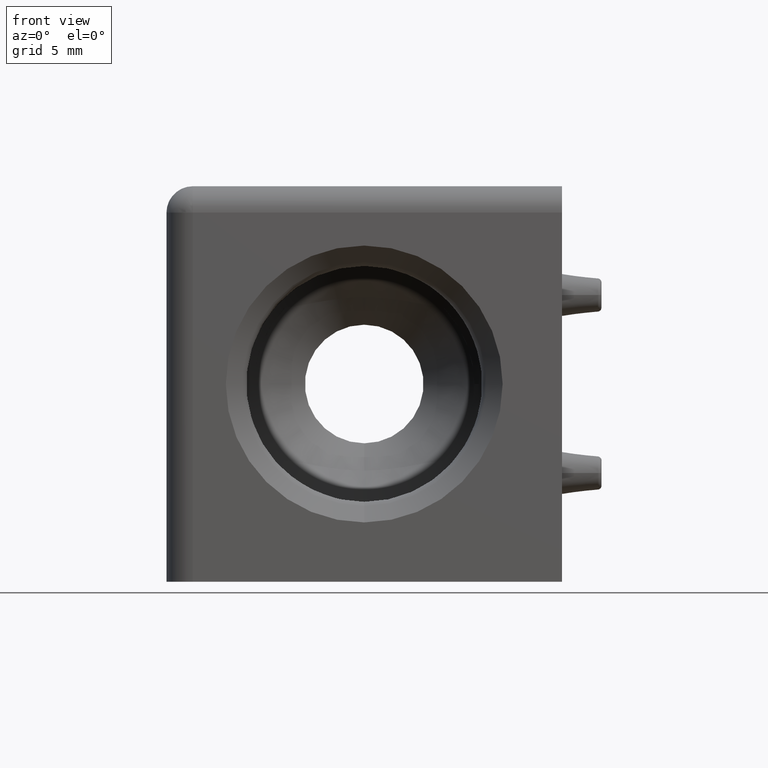
[diagram: clean part render]
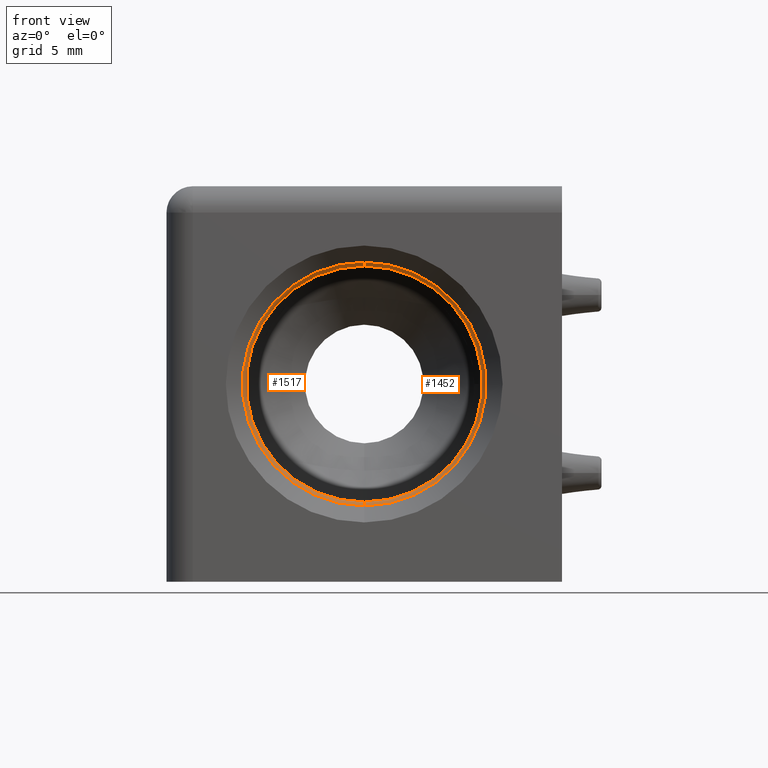
[diagram: same view with one multi-face feature highlighted, each face labeled with its STEP entity id]
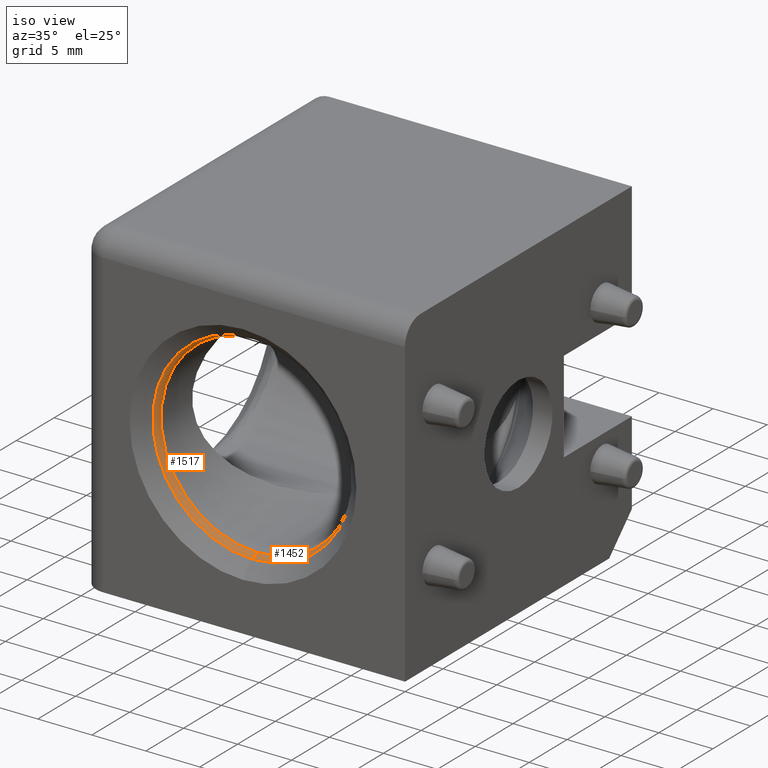
[diagram: same view with one multi-face feature highlighted, each face labeled with its STEP entity id]
A machine part, front view. The highlighted faces form ONE feature: a constant-radius fillet chain: 2 tangent blend faces with common blend radius 1 mm. The faces share edges in the B-rep.
A second angle (iso view) of the same feature is appended — it is thin or edge-on in the first view.
Their STEP definitions:
[1] entity #1517 (Torus):
#35=TOROIDAL_SURFACE('',#1741,9.94887868760297,1.);
#360=FACE_OUTER_BOUND('',#475,.T.);
#475=EDGE_LOOP('',(#1377,#1378,#1379,#1380));
#496=CIRCLE('',#1566,8.94922136262741);
#518=CIRCLE('',#1602,0.999999999999999);
#520=CIRCLE('',#1604,0.999999999999999);
#526=CIRCLE('',#1613,9.24177190641642);
#622=VERTEX_POINT('',#2444);
#623=VERTEX_POINT('',#2446);
#669=VERTEX_POINT('',#2628);
#670=VERTEX_POINT('',#2630);
#774=EDGE_CURVE('',#623,#622,#496,.T.);
#832=EDGE_CURVE('',#622,#669,#518,.T.);
#834=EDGE_CURVE('',#623,#670,#520,.T.);
#842=EDGE_CURVE('',#669,#670,#526,.T.);
#1377=ORIENTED_EDGE('',*,*,#832,.F.);
#1378=ORIENTED_EDGE('',*,*,#774,.F.);
#1379=ORIENTED_EDGE('',*,*,#834,.T.);
#1380=ORIENTED_EDGE('',*,*,#842,.F.);
#1517=ADVANCED_FACE('',(#360),#35,.T.);
#1566=AXIS2_PLACEMENT_3D('',#2462,#1837,#1838);
#1602=AXIS2_PLACEMENT_3D('',#2629,#1936,#1937);
#1604=AXIS2_PLACEMENT_3D('',#2632,#1940,#1941);
#1613=AXIS2_PLACEMENT_3D('',#2647,#1960,#1961);
#1741=AXIS2_PLACEMENT_3D('',#2864,#2253,#2254);
#1837=DIRECTION('center_axis',(0.,-1.,0.));
#1838=DIRECTION('ref_axis',(0.,0.,1.));
#1936=DIRECTION('center_axis',(1.,0.,1.22464679914735E-16));
#1937=DIRECTION('ref_axis',(1.22464679914735E-16,0.,-1.));
#1940=DIRECTION('center_axis',(-1.,0.,0.));
#1941=DIRECTION('ref_axis',(0.,0.,1.));
#1960=DIRECTION('center_axis',(0.,1.,0.));
#1961=DIRECTION('ref_axis',(0.,0.,1.));
#2253=DIRECTION('center_axis',(0.,1.,0.));
#2254=DIRECTION('ref_axis',(0.,0.,1.));
#2444=CARTESIAN_POINT('',(0.,-13.0608420735378,-8.94922136262741));
#2446=CARTESIAN_POINT('',(1.09596352966028E-15,-13.0608420735378,8.94922136262741));
#2462=CARTESIAN_POINT('Origin',(0.,-13.0608420735378,0.));
#2628=CARTESIAN_POINT('',(0.,-13.7417719064164,-9.24177190641642));
#2629=CARTESIAN_POINT('Origin',(1.21838624398783E-15,-13.0346651252299,
-9.94887868760297));
#2630=CARTESIAN_POINT('',(1.2088348887345E-15,-13.7417719064164,9.24177190641642));
#2632=CARTESIAN_POINT('Origin',(0.,-13.0346651252299,9.94887868760297));
#2647=CARTESIAN_POINT('Origin',(0.,-13.7417719064164,0.));
#2864=CARTESIAN_POINT('Origin',(0.,-13.0346651252299,0.));
[2] entity #1452 (Torus):
#16=TOROIDAL_SURFACE('',#1601,9.94887868760297,1.);
#295=FACE_OUTER_BOUND('',#403,.T.);
#403=EDGE_LOOP('',(#1109,#1110,#1111,#1112));
#494=CIRCLE('',#1562,8.94922136262741);
#518=CIRCLE('',#1602,0.999999999999999);
#519=CIRCLE('',#1603,9.24177190641642);
#520=CIRCLE('',#1604,0.999999999999999);
#622=VERTEX_POINT('',#2444);
#623=VERTEX_POINT('',#2446);
#669=VERTEX_POINT('',#2628);
#670=VERTEX_POINT('',#2630);
#769=EDGE_CURVE('',#622,#623,#494,.T.);
#832=EDGE_CURVE('',#622,#669,#518,.T.);
#833=EDGE_CURVE('',#670,#669,#519,.T.);
#834=EDGE_CURVE('',#623,#670,#520,.T.);
#1109=ORIENTED_EDGE('',*,*,#769,.F.);
#1110=ORIENTED_EDGE('',*,*,#832,.T.);
#1111=ORIENTED_EDGE('',*,*,#833,.F.);
#1112=ORIENTED_EDGE('',*,*,#834,.F.);
#1452=ADVANCED_FACE('',(#295),#16,.T.);
#1562=AXIS2_PLACEMENT_3D('',#2447,#1828,#1829);
#1601=AXIS2_PLACEMENT_3D('',#2627,#1934,#1935);
#1602=AXIS2_PLACEMENT_3D('',#2629,#1936,#1937);
#1603=AXIS2_PLACEMENT_3D('',#2631,#1938,#1939);
#1604=AXIS2_PLACEMENT_3D('',#2632,#1940,#1941);
#1828=DIRECTION('center_axis',(0.,-1.,0.));
#1829=DIRECTION('ref_axis',(0.,0.,1.));
#1934=DIRECTION('center_axis',(0.,1.,0.));
#1935=DIRECTION('ref_axis',(0.,0.,1.));
#1936=DIRECTION('center_axis',(1.,0.,1.22464679914735E-16));
#1937=DIRECTION('ref_axis',(1.22464679914735E-16,0.,-1.));
#1938=DIRECTION('center_axis',(0.,1.,0.));
#1939=DIRECTION('ref_axis',(0.,0.,1.));
#1940=DIRECTION('center_axis',(-1.,0.,0.));
#1941=DIRECTION('ref_axis',(0.,0.,1.));
#2444=CARTESIAN_POINT('',(0.,-13.0608420735378,-8.94922136262741));
#2446=CARTESIAN_POINT('',(1.09596352966028E-15,-13.0608420735378,8.94922136262741));
#2447=CARTESIAN_POINT('Origin',(0.,-13.0608420735378,0.));
#2627=CARTESIAN_POINT('Origin',(0.,-13.0346651252299,0.));
#2628=CARTESIAN_POINT('',(0.,-13.7417719064164,-9.24177190641642));
#2629=CARTESIAN_POINT('Origin',(1.21838624398783E-15,-13.0346651252299,
-9.94887868760297));
#2630=CARTESIAN_POINT('',(1.2088348887345E-15,-13.7417719064164,9.24177190641642));
#2631=CARTESIAN_POINT('Origin',(0.,-13.7417719064164,0.));
#2632=CARTESIAN_POINT('Origin',(0.,-13.0346651252299,9.94887868760297));